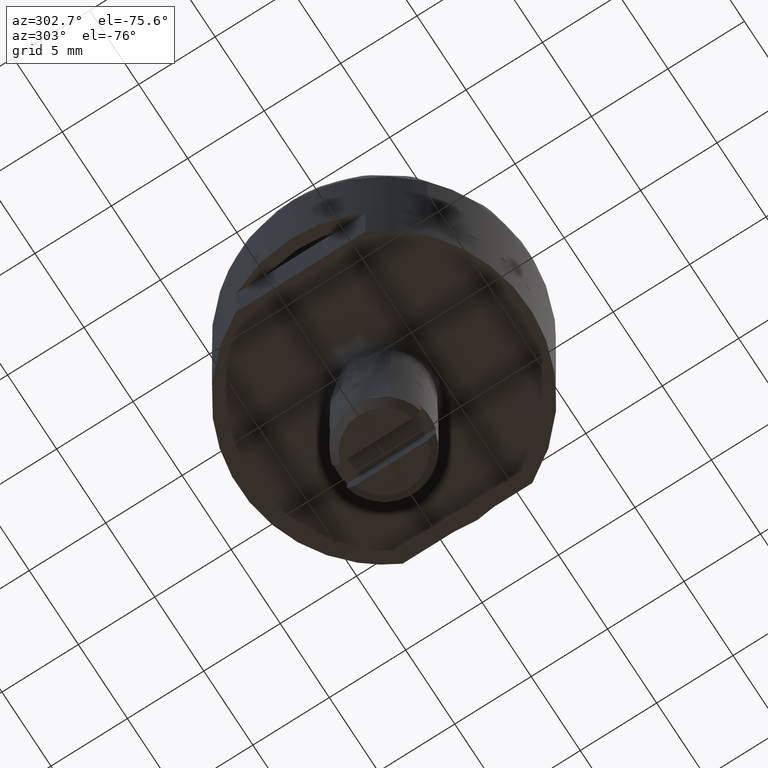
[diagram: clean part render]
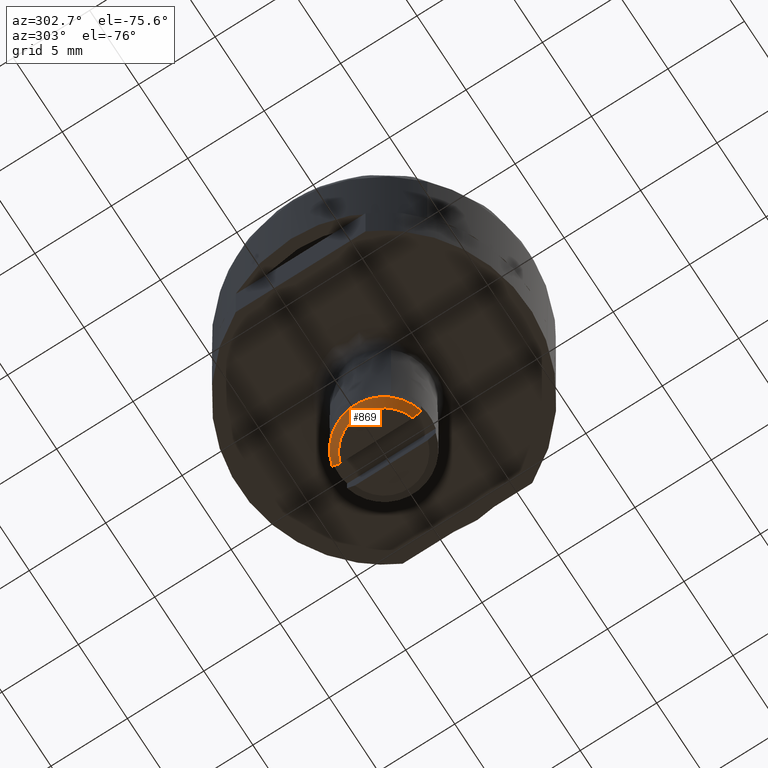
[diagram: same view with one face highlighted and labeled with its STEP entity id]
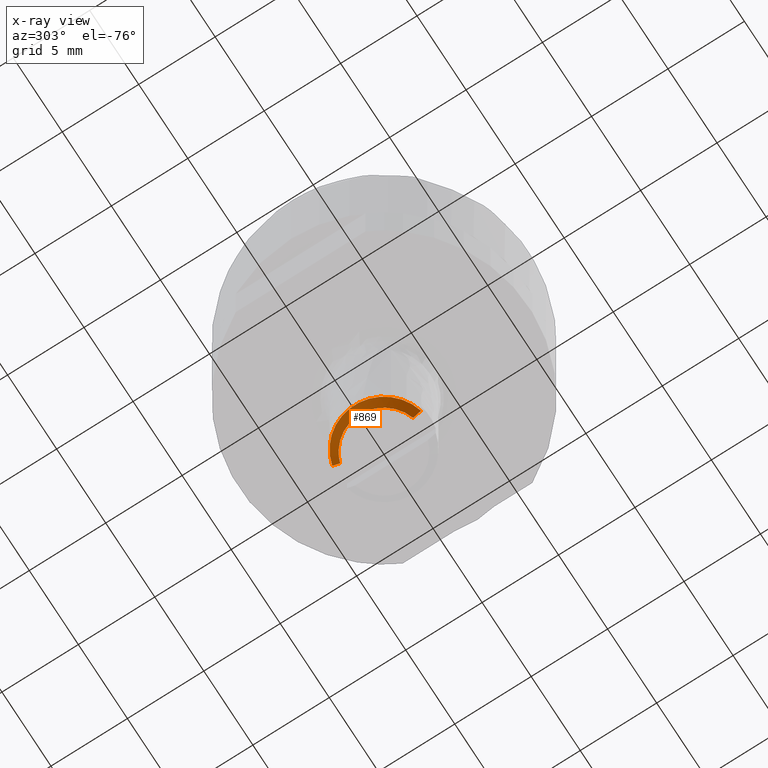
[diagram: x-ray of the same camera — body ghosted, the highlighted face saturated]
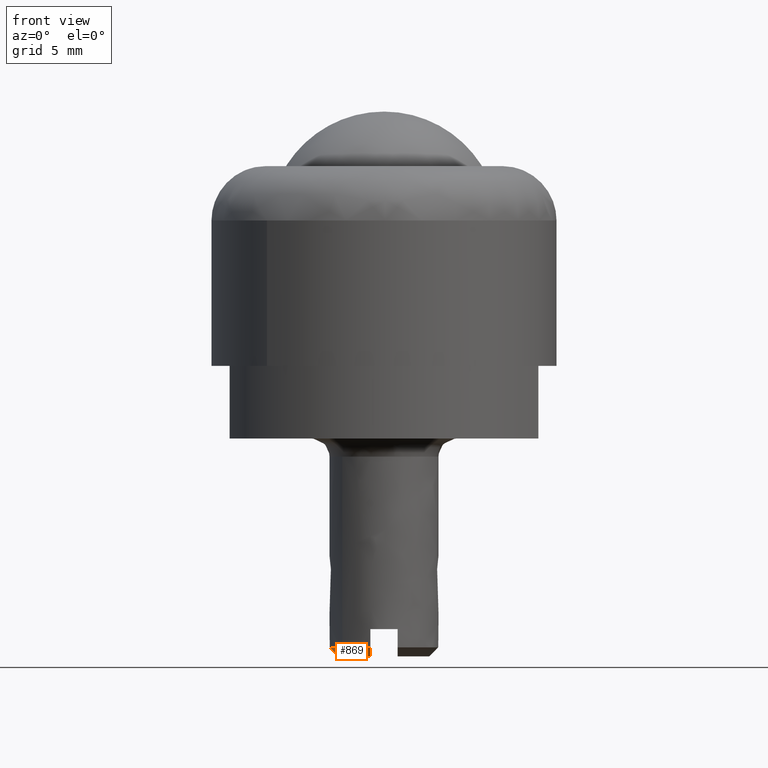
[diagram: same view with one face highlighted and labeled with its STEP entity id]
A machine part, auxiliary view. The second image highlights one B-rep face of the part: STEP entity #869.
The next image is the same camera in x-ray: the body ghosted, the highlighted face saturated — about 0% of this face is hidden behind the body in this view.
A second angle (front view) of the same face is appended — the face is thin or edge-on in the first view.
In plain terms, the highlighted face is a freeform B-spline surface patch.
Its self-contained STEP definition (entity closure, byte-faithful):
#526=CARTESIAN_POINT('',(-2.297376305738516,-1.929264655207016,-15.500000000000000));
#527=VERTEX_POINT('',#526);
#533=CARTESIAN_POINT('',(-0.750000000000000,-2.904737509655510,-15.500000000000000));
#534=VERTEX_POINT('',#533);
#535=CARTESIAN_POINT('',(-0.750000000000000,-2.904737509655510,-15.500000000000000));
#536=CARTESIAN_POINT('',(-0.984366817869655,-2.844289503279316,-15.500000000000020));
#537=CARTESIAN_POINT('',(-1.311166837394396,-2.716036886571357,-15.499999999999980));
#538=CARTESIAN_POINT('',(-1.840804201193753,-2.392804736260912,-15.500000000000011));
#539=CARTESIAN_POINT('',(-2.123124294360347,-2.136930598322247,-15.500000000000020));
#540=CARTESIAN_POINT('',(-2.297376305738516,-1.929264655207016,-15.500000000000000));
#541=B_SPLINE_CURVE_WITH_KNOTS('',3,(#535,#536,#537,#538,#539,#540),.UNSPECIFIED.,.F.,.U.,(4,1,1,4),(6.464165E-009,0.726090747373688,1.045560173207978,1.858782926807088),.UNSPECIFIED.);
#542=EDGE_CURVE('',#534,#527,#541,.T.);
#643=CARTESIAN_POINT('',(-0.750000000000000,2.904737509655510,-15.500000000000000));
#644=VERTEX_POINT('',#643);
#650=CARTESIAN_POINT('',(-2.297376305738516,-1.929264655207016,-15.500000000000000));
#651=CARTESIAN_POINT('',(-2.449396362592950,-1.748319679502509,-15.500000000000000));
#652=CARTESIAN_POINT('',(-2.658104860852750,-1.429859985704063,-15.500000000000020));
#653=CARTESIAN_POINT('',(-2.850852722537235,-0.962623895349985,-15.499999999999970));
#654=CARTESIAN_POINT('',(-2.955336335377019,-0.565697961295364,-15.500000000000069));
#655=CARTESIAN_POINT('',(-3.011762635202851,-0.111132829499333,-15.499999999999860));
#656=CARTESIAN_POINT('',(-2.991181054981000,0.379024550520760,-15.500000000000240));
#657=CARTESIAN_POINT('',(-2.876396823273825,0.903952512534749,-15.499999999999719));
#658=CARTESIAN_POINT('',(-2.660579849122924,1.431208138266505,-15.500000000000069));
#659=CARTESIAN_POINT('',(-2.306056633773504,1.956875395918631,-15.500000000000080));
#660=CARTESIAN_POINT('',(-1.856599121010962,2.381329557139646,-15.500000000000140));
#661=CARTESIAN_POINT('',(-1.334003105088038,2.708871302735767,-15.499999999999670));
#662=CARTESIAN_POINT('',(-0.963576780067196,2.849636893461457,-15.500000000000330));
#663=CARTESIAN_POINT('',(-0.750000000000000,2.904737509655510,-15.500000000000000));
#664=B_SPLINE_CURVE_WITH_KNOTS('',3,(#650,#651,#652,#653,#654,#655,#656,#657,#658,#659,#660,#661,#662,#663),.UNSPECIFIED.,.F.,.U.,(4,1,1,1,1,1,1,1,1,1,1,4),(0.000000025788584,0.708976523286311,1.134367467467452,1.512496098519182,1.937892185112199,2.505085640147449,2.977730374615902,3.544900224412335,4.206626392045887,4.868348609169136,5.388276919167745,6.049983327269104),.UNSPECIFIED.);
#665=EDGE_CURVE('',#527,#644,#664,.T.);
#786=CARTESIAN_POINT('',(-0.750000000000000,-2.384848003542330,-16.0));
#787=VERTEX_POINT('',#786);
#788=CARTESIAN_POINT('',(-0.750000000000000,-2.904737509655510,-15.500000000000000));
#789=CARTESIAN_POINT('',(-0.750000000000000,-2.732000227821513,-15.667247734292349));
#790=CARTESIAN_POINT('',(-0.750000000000000,-2.558835971659497,-15.834051813370960));
#791=CARTESIAN_POINT('',(-0.750000000000000,-2.384848003542330,-16.0));
#792=B_SPLINE_CURVE_WITH_KNOTS('',3,(#788,#789,#790,#791),.UNSPECIFIED.,.F.,.U.,(4,4),(0.0,0.097459408056510),.UNSPECIFIED.);
#793=EDGE_CURVE('',#534,#787,#792,.T.);
#795=CARTESIAN_POINT('',(-0.750000000000000,2.384848003542330,-16.0));
#796=VERTEX_POINT('',#795);
#802=CARTESIAN_POINT('',(-0.750000000000000,2.384848003542330,-16.0));
#803=CARTESIAN_POINT('',(-0.750000000000000,2.558816355898818,-15.834071573065311));
#804=CARTESIAN_POINT('',(-0.750000000000000,2.731983846120825,-15.667263146179740));
#805=CARTESIAN_POINT('',(-0.750000000000000,2.904737509655510,-15.500000000000000));
#806=B_SPLINE_CURVE_WITH_KNOTS('',3,(#802,#803,#804,#805),.UNSPECIFIED.,.F.,.U.,(4,4),(0.903562280401136,1.0),.UNSPECIFIED.);
#807=EDGE_CURVE('',#796,#644,#806,.T.);
#821=CARTESIAN_POINT('',(-0.750000000000000,-2.384848003542330,-16.0));
#822=CARTESIAN_POINT('',(-0.875808097121378,-2.345288463778499,-16.000000000000021));
#823=CARTESIAN_POINT('',(-1.159495516907112,-2.230730071073210,-16.0));
#824=CARTESIAN_POINT('',(-1.516054877133352,-2.003792899742575,-15.999999999999970));
#825=CARTESIAN_POINT('',(-1.827257835993475,-1.719655793789041,-16.000000000000039));
#826=CARTESIAN_POINT('',(-2.093252543787117,-1.392422553092684,-16.000000000000050));
#827=CARTESIAN_POINT('',(-2.347381782767164,-0.926860341603347,-15.999999999999689));
#828=CARTESIAN_POINT('',(-2.500380482244177,-0.356552045917025,-16.000000000000131));
#829=CARTESIAN_POINT('',(-2.508590833356779,0.199243512643017,-15.999999999999890));
#830=CARTESIAN_POINT('',(-2.427272013711586,0.638470885420511,-16.000000000000391));
#831=CARTESIAN_POINT('',(-2.299111436154746,1.005055424863822,-15.999999999999590));
#832=CARTESIAN_POINT('',(-2.083418560306122,1.414821177122525,-16.000000000000039));
#833=CARTESIAN_POINT('',(-1.802217389565400,1.753864851942959,-16.000000000000160));
#834=CARTESIAN_POINT('',(-1.472583506313539,2.028862573531789,-15.999999999999719));
#835=CARTESIAN_POINT('',(-1.158809554253056,2.228585661504644,-16.000000000000401));
#836=CARTESIAN_POINT('',(-0.899400262653067,2.337881757335288,-16.000000000000469));
#837=CARTESIAN_POINT('',(-0.750000000000000,2.384848003542330,-16.0));
#838=B_SPLINE_CURVE_WITH_KNOTS('',3,(#821,#822,#823,#824,#825,#826,#827,#828,#829,#830,#831,#832,#833,#834,#835,#836,#837),.UNSPECIFIED.,.F.,.U.,(4,1,1,1,1,1,1,1,1,1,1,1,1,1,4),(0.000000103705492,0.395646494247414,0.914957712320501,1.261162509406606,1.656823126172887,2.176127453169277,2.843802098228471,3.412550974921390,3.832940466973025,4.179144268886717,4.574806187910520,5.217761789649848,5.489774889818968,5.860719252700999,6.330544170524249),.UNSPECIFIED.);
#839=EDGE_CURVE('',#787,#796,#838,.T.);
#844=CARTESIAN_POINT('',(-0.600833359641784,-2.413846623947250,-16.012499999999999));
#845=CARTESIAN_POINT('',(-0.727717891998298,-2.923604937371292,-15.487187499999999));
#846=CARTESIAN_POINT('',(-2.538150094280406,-1.931626871119818,-16.012499999999999));
#847=CARTESIAN_POINT('',(-3.074158927004704,-2.339549580963092,-15.487187499999999));
#848=CARTESIAN_POINT('',(-2.486672961161633,0.064139178569792,-16.012499999999999));
#849=CARTESIAN_POINT('',(-3.011810806351677,0.077684148315498,-15.487187499999999));
#850=CARTESIAN_POINT('',(-2.435195828042860,2.059905228259403,-16.012499999999999));
#851=CARTESIAN_POINT('',(-2.949462685698652,2.494917877594088,-15.487187499999999));
#852=CARTESIAN_POINT('',(-0.475595711766504,2.441611142043155,-16.012499999999999));
#853=CARTESIAN_POINT('',(-0.576032444364432,2.957232791512325,-15.487187499999999));
#861=(BOUNDED_SURFACE()B_SPLINE_SURFACE(1,2,((#844,#846,#848,#850,#852),(#845,#847,#849,#851,#853)),.UNSPECIFIED.,.F.,.F.,.U.)B_SPLINE_SURFACE_WITH_KNOTS((2,2),(3,2,3),(0.0,1.0),(0.0,4.238005508678005,8.476011017356010),.UNSPECIFIED.)GEOMETRIC_REPRESENTATION_ITEM()RATIONAL_B_SPLINE_SURFACE(((1.0,0.779884483092882,1.0,0.779884483092882,1.0),(1.0,0.779884483092882,1.0,0.779884483092882,1.0)))REPRESENTATION_ITEM('')SURFACE());
#862=ORIENTED_EDGE('',*,*,#793,.F.);
#863=ORIENTED_EDGE('',*,*,#542,.T.);
#864=ORIENTED_EDGE('',*,*,#665,.T.);
#865=ORIENTED_EDGE('',*,*,#807,.F.);
#866=ORIENTED_EDGE('',*,*,#839,.F.);
#867=EDGE_LOOP('',(#862,#863,#864,#865,#866));
#868=FACE_OUTER_BOUND('',#867,.T.);
#869=ADVANCED_FACE('',(#868),#861,.T.);